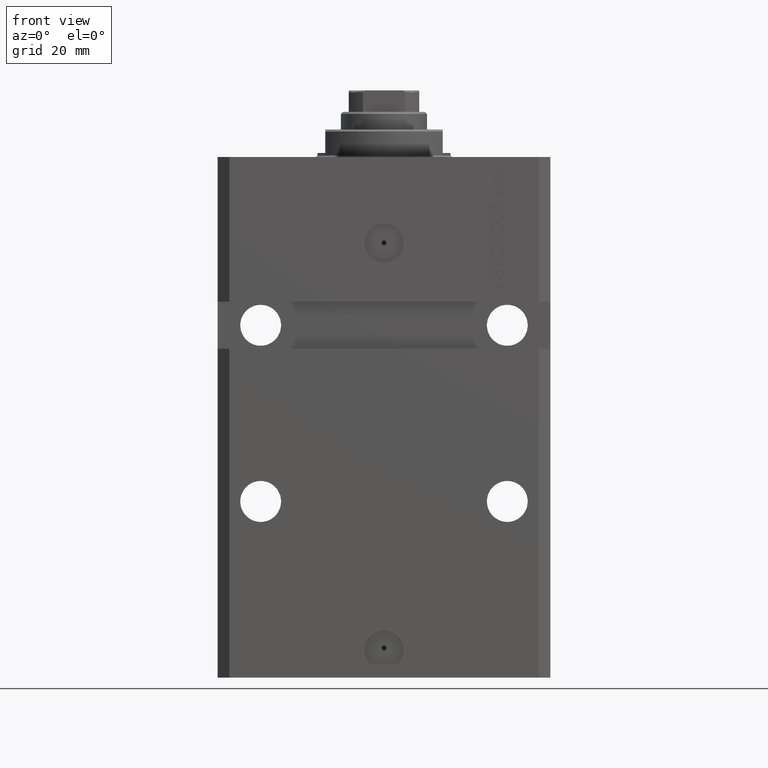
[diagram: clean part render]
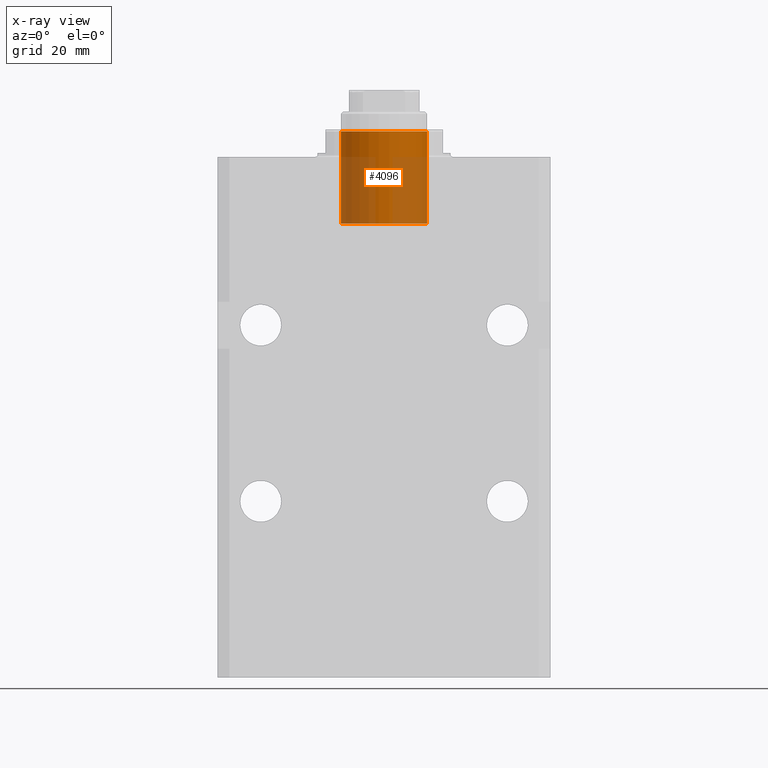
[diagram: x-ray — body ghosted, one internal face saturated and labeled with its STEP entity id]
A machine part, front view, then the same camera in x-ray: the body is ghosted and one INTERNAL B-rep face — a face not visible from any outside direction — is saturated and labeled: STEP entity #4096.
In plain terms, the highlighted cylindrical surface (partial cylindrical patch) has radius 11 mm, axis along (0, -0, 1).
Its self-contained STEP definition (entity closure, byte-faithful):
#4096 = ADVANCED_FACE ( 'NONE', ( #21879 ), #29738, .F. ) ;
#6349 = LINE ( 'NONE', #21342, #19452 ) ;
#6393 = DIRECTION ( 'NONE',  ( -0.000000000000000000, -0.000000000000000000, -1.000000000000000000 ) ) ;
#6619 = ORIENTED_EDGE ( 'NONE', *, *, #48148, .F. ) ;
#7283 = ORIENTED_EDGE ( 'NONE', *, *, #7295, .T. ) ;
#7295 = EDGE_CURVE ( 'NONE', #31999, #39349, #13995, .T. ) ;
#8167 = EDGE_CURVE ( 'NONE', #39349, #32759, #8394, .T. ) ;
#8394 = CIRCLE ( 'NONE', #42926, 11.00000000000000000 ) ;
#9214 = CARTESIAN_POINT ( 'NONE',  ( 0.000000000000000000, 0.000000000000000000, 17.00000000000000000 ) ) ;
#9592 = DIRECTION ( 'NONE',  ( 0.000000000000000000, 0.000000000000000000, -1.000000000000000000 ) ) ;
#13995 = LINE ( 'NONE', #46728, #36574 ) ;
#19452 = VECTOR ( 'NONE', #25254, 1000.000000000000000 ) ;
#20626 = EDGE_CURVE ( 'NONE', #31999, #36105, #43747, .T. ) ;
#20992 = DIRECTION ( 'NONE',  ( 0.000000000000000000, 0.000000000000000000, -1.000000000000000000 ) ) ;
#21342 = CARTESIAN_POINT ( 'NONE',  ( -11.00000000000000000, 0.000000000000000000, 17.00000000000000000 ) ) ;
#21879 = FACE_OUTER_BOUND ( 'NONE', #35624, .T. ) ;
#22119 = DIRECTION ( 'NONE',  ( -1.000000000000000000, 0.000000000000000000, 0.000000000000000000 ) ) ;
#22196 = ORIENTED_EDGE ( 'NONE', *, *, #8167, .T. ) ;
#24090 = DIRECTION ( 'NONE',  ( -1.000000000000000000, 0.000000000000000000, 0.000000000000000000 ) ) ;
#25254 = DIRECTION ( 'NONE',  ( -0.000000000000000000, -0.000000000000000000, -1.000000000000000000 ) ) ;
#29002 = CARTESIAN_POINT ( 'NONE',  ( 0.000000000000000000, 0.000000000000000000, 17.00000000000000000 ) ) ;
#29738 = CYLINDRICAL_SURFACE ( 'NONE', #35714, 11.00000000000000000 ) ;
#30363 = AXIS2_PLACEMENT_3D ( 'NONE', #9214, #20992, #35273 ) ;
#31999 = VERTEX_POINT ( 'NONE', #40880 ) ;
#32759 = VERTEX_POINT ( 'NONE', #41194 ) ;
#35273 = DIRECTION ( 'NONE',  ( -1.000000000000000000, 0.000000000000000000, 0.000000000000000000 ) ) ;
#35624 = EDGE_LOOP ( 'NONE', ( #38696, #7283, #22196, #6619 ) ) ;
#35714 = AXIS2_PLACEMENT_3D ( 'NONE', #29002, #6393, #22119 ) ;
#36105 = VERTEX_POINT ( 'NONE', #38728 ) ;
#36574 = VECTOR ( 'NONE', #47694, 1000.000000000000000 ) ;
#38696 = ORIENTED_EDGE ( 'NONE', *, *, #20626, .F. ) ;
#38728 = CARTESIAN_POINT ( 'NONE',  ( -11.00000000000000000, 0.000000000000000000, 17.00000000000000000 ) ) ;
#39349 = VERTEX_POINT ( 'NONE', #42487 ) ;
#40052 = CARTESIAN_POINT ( 'NONE',  ( 0.000000000000000000, 0.000000000000000000, -6.499999999999992006 ) ) ;
#40880 = CARTESIAN_POINT ( 'NONE',  ( 11.00000000000000000, 1.347111479062088405E-15, 17.00000000000000000 ) ) ;
#41194 = CARTESIAN_POINT ( 'NONE',  ( -11.00000000000000000, 0.000000000000000000, -6.499999999999992006 ) ) ;
#42487 = CARTESIAN_POINT ( 'NONE',  ( 11.00000000000000000, 1.347111479062088405E-15, -6.499999999999992006 ) ) ;
#42926 = AXIS2_PLACEMENT_3D ( 'NONE', #40052, #9592, #24090 ) ;
#43747 = CIRCLE ( 'NONE', #30363, 11.00000000000000000 ) ;
#46728 = CARTESIAN_POINT ( 'NONE',  ( 11.00000000000000000, 1.347111479062088405E-15, 17.00000000000000000 ) ) ;
#47694 = DIRECTION ( 'NONE',  ( -0.000000000000000000, -0.000000000000000000, -1.000000000000000000 ) ) ;
#48148 = EDGE_CURVE ( 'NONE', #36105, #32759, #6349, .T. ) ;